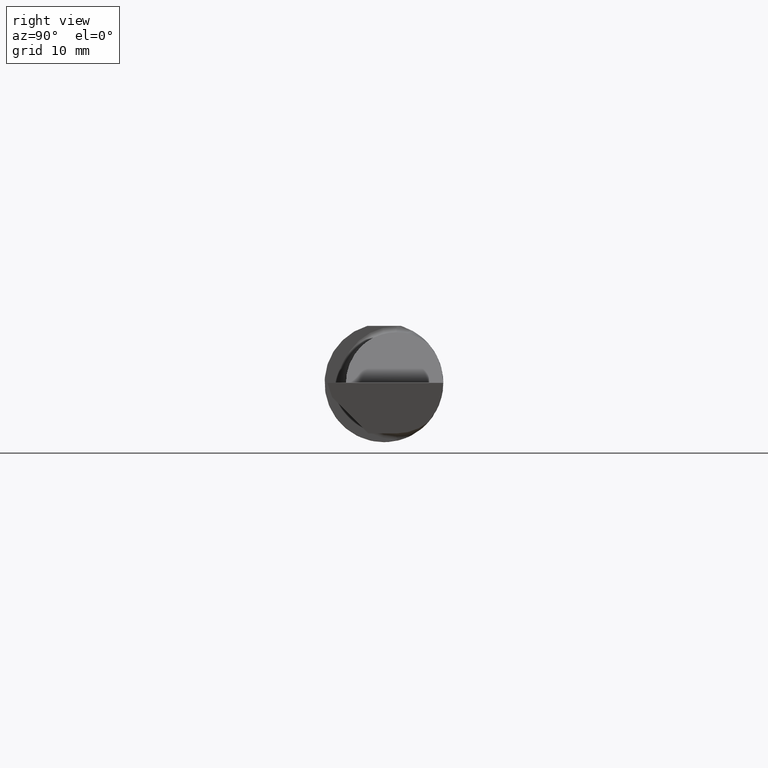
[diagram: clean part render]
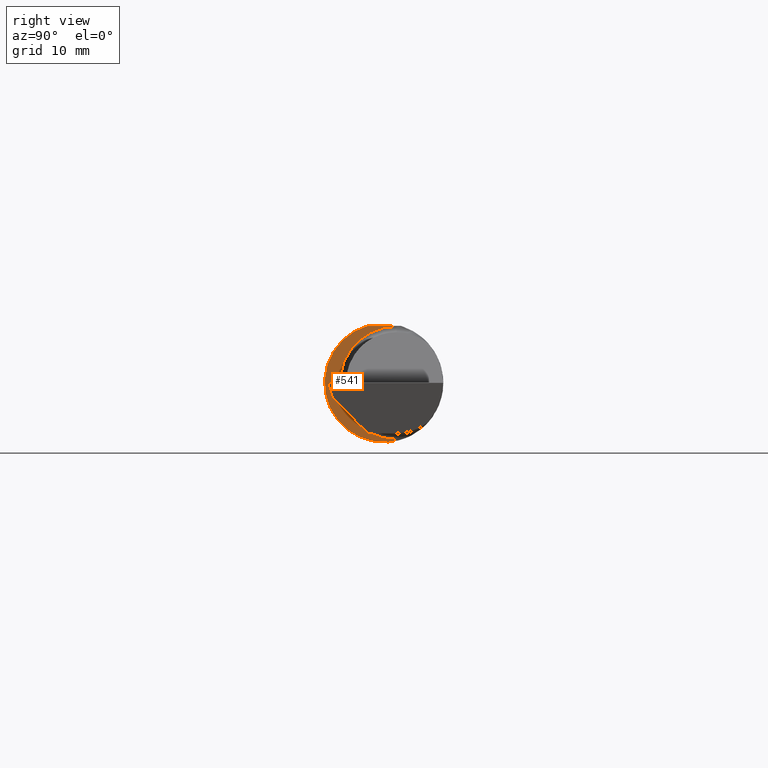
[diagram: same view with one face highlighted and labeled with its STEP entity id]
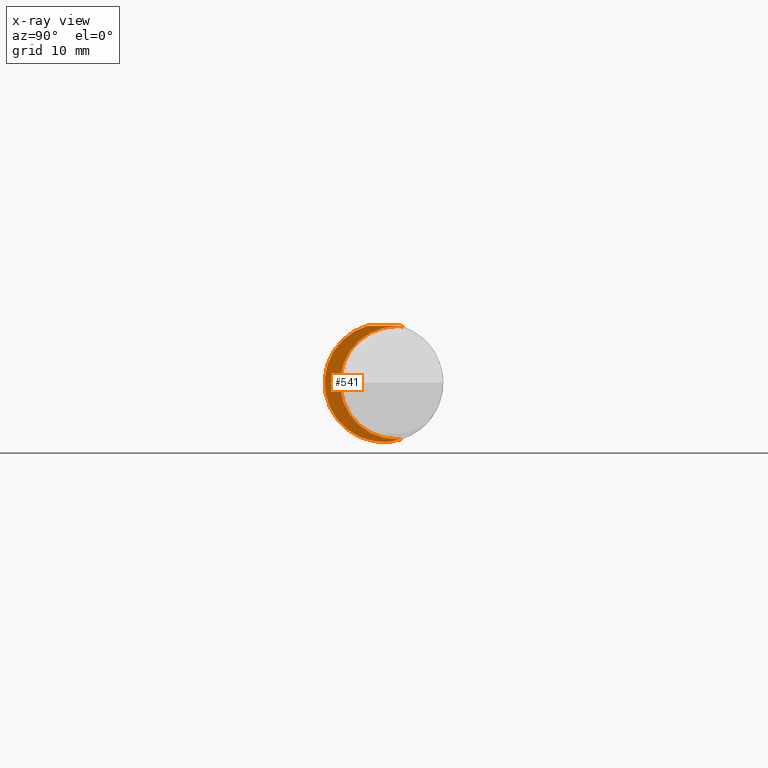
[diagram: x-ray of the same camera — body ghosted, the highlighted face saturated]
A machine part, right view. The second image highlights one B-rep face of the part: STEP entity #541.
The next image is the same camera in x-ray: the body ghosted, the highlighted face saturated — about 13% of this face is hidden behind the body in this view.
In plain terms, the highlighted planar face has unit normal (-1, 0, -0).
Its self-contained STEP definition (entity closure, byte-faithful):
#4 = DIRECTION ( 'NONE',  ( -1.000000000000000000, -0.000000000000000000, -0.000000000000000000 ) ) ;
#5 = AXIS2_PLACEMENT_3D ( 'NONE', #576, #339, #519 ) ;
#14 = CARTESIAN_POINT ( 'NONE',  ( 1.450000000000000178, 0.08036415094339564857, -0.2365726648265752963 ) ) ;
#35 = EDGE_CURVE ( 'NONE', #457, #362, #78, .T. ) ;
#64 = CIRCLE ( 'NONE', #103, 0.2498499999999999888 ) ;
#78 = CIRCLE ( 'NONE', #126, 0.2381500000000001394 ) ;
#92 = CARTESIAN_POINT ( 'NONE',  ( 1.450000000000000178, 0.08036415094339564857, 0.2365726648265752963 ) ) ;
#95 = CARTESIAN_POINT ( 'NONE',  ( 1.450000000000000178, 0.05299999999999998462, 0.2381500000000001394 ) ) ;
#103 = AXIS2_PLACEMENT_3D ( 'NONE', #456, #165, #225 ) ;
#105 = DIRECTION ( 'NONE',  ( 0.000000000000000000, 1.000000000000000000, -1.138839417068644240E-16 ) ) ;
#126 = AXIS2_PLACEMENT_3D ( 'NONE', #734, #489, #270 ) ;
#127 = CARTESIAN_POINT ( 'NONE',  ( 1.450000000000000178, 0.05300000000000001238, -0.2381500000000001394 ) ) ;
#134 = CARTESIAN_POINT ( 'NONE',  ( 1.450000000000000178, 0.06997856814768384226, 0.2398500000000000076 ) ) ;
#157 = LINE ( 'NONE', #394, #162 ) ;
#162 = VECTOR ( 'NONE', #105, 39.37007874015748143 ) ;
#165 = DIRECTION ( 'NONE',  ( -1.000000000000000000, -0.000000000000000000, -0.000000000000000000 ) ) ;
#181 = ORIENTED_EDGE ( 'NONE', *, *, #311, .F. ) ;
#185 = EDGE_CURVE ( 'NONE', #362, #667, #692, .T. ) ;
#201 = CARTESIAN_POINT ( 'NONE',  ( 1.450000000000000178, -0.1851500000000001478, 0.000000000000000000 ) ) ;
#206 = AXIS2_PLACEMENT_3D ( 'NONE', #201, #495, #599 ) ;
#225 = DIRECTION ( 'NONE',  ( 0.000000000000000000, 0.000000000000000000, 1.000000000000000000 ) ) ;
#229 = VERTEX_POINT ( 'NONE', #92 ) ;
#262 = EDGE_CURVE ( 'NONE', #457, #425, #64, .T. ) ;
#270 = DIRECTION ( 'NONE',  ( 0.000000000000000000, 0.000000000000000000, 1.000000000000000000 ) ) ;
#306 = AXIS2_PLACEMENT_3D ( 'NONE', #539, #4, #710 ) ;
#309 = ORIENTED_EDGE ( 'NONE', *, *, #474, .F. ) ;
#311 = EDGE_CURVE ( 'NONE', #425, #450, #157, .T. ) ;
#323 = ORIENTED_EDGE ( 'NONE', *, *, #342, .T. ) ;
#339 = DIRECTION ( 'NONE',  ( -1.000000000000000000, -0.000000000000000000, -0.000000000000000000 ) ) ;
#342 = EDGE_CURVE ( 'NONE', #667, #229, #741, .T. ) ;
#362 = VERTEX_POINT ( 'NONE', #127 ) ;
#364 = ORIENTED_EDGE ( 'NONE', *, *, #185, .T. ) ;
#373 = DIRECTION ( 'NONE',  ( -1.000000000000000000, -0.000000000000000000, -0.000000000000000000 ) ) ;
#394 = CARTESIAN_POINT ( 'NONE',  ( 1.450000000000000178, 0.2998500000000000609, 0.2398499999999999799 ) ) ;
#424 = PLANE ( 'NONE',  #206 ) ;
#425 = VERTEX_POINT ( 'NONE', #477 ) ;
#450 = VERTEX_POINT ( 'NONE', #134 ) ;
#456 = CARTESIAN_POINT ( 'NONE',  ( 1.450000000000000178, 0.000000000000000000, 0.000000000000000000 ) ) ;
#457 = VERTEX_POINT ( 'NONE', #14 ) ;
#465 = ORIENTED_EDGE ( 'NONE', *, *, #262, .F. ) ;
#474 = EDGE_CURVE ( 'NONE', #450, #229, #658, .T. ) ;
#477 = CARTESIAN_POINT ( 'NONE',  ( 1.450000000000000178, -0.06997856814768405043, 0.2398500000000000076 ) ) ;
#489 = DIRECTION ( 'NONE',  ( -1.000000000000000000, -0.000000000000000000, -0.000000000000000000 ) ) ;
#495 = DIRECTION ( 'NONE',  ( -1.000000000000000000, 0.000000000000000000, -0.000000000000000000 ) ) ;
#519 = DIRECTION ( 'NONE',  ( 0.000000000000000000, 0.000000000000000000, 1.000000000000000000 ) ) ;
#539 = CARTESIAN_POINT ( 'NONE',  ( 1.450000000000000178, 0.05299999999999998462, 0.000000000000000000 ) ) ;
#541 = ADVANCED_FACE ( 'NONE', ( #719 ), #424, .F. ) ;
#545 = CARTESIAN_POINT ( 'NONE',  ( 1.450000000000000178, 0.000000000000000000, 0.000000000000000000 ) ) ;
#576 = CARTESIAN_POINT ( 'NONE',  ( 1.450000000000000178, 0.05299999999999998462, 0.000000000000000000 ) ) ;
#585 = ORIENTED_EDGE ( 'NONE', *, *, #35, .T. ) ;
#588 = EDGE_LOOP ( 'NONE', ( #585, #364, #323, #309, #181, #465 ) ) ;
#599 = DIRECTION ( 'NONE',  ( -0.000000000000000000, 0.000000000000000000, 1.000000000000000000 ) ) ;
#658 = CIRCLE ( 'NONE', #718, 0.2498499999999999888 ) ;
#667 = VERTEX_POINT ( 'NONE', #95 ) ;
#692 = CIRCLE ( 'NONE', #5, 0.2381500000000001394 ) ;
#710 = DIRECTION ( 'NONE',  ( 0.000000000000000000, 0.000000000000000000, 1.000000000000000000 ) ) ;
#718 = AXIS2_PLACEMENT_3D ( 'NONE', #545, #373, #726 ) ;
#719 = FACE_OUTER_BOUND ( 'NONE', #588, .T. ) ;
#726 = DIRECTION ( 'NONE',  ( 0.000000000000000000, 0.000000000000000000, 1.000000000000000000 ) ) ;
#734 = CARTESIAN_POINT ( 'NONE',  ( 1.450000000000000178, 0.05299999999999998462, 0.000000000000000000 ) ) ;
#741 = CIRCLE ( 'NONE', #306, 0.2381500000000001394 ) ;